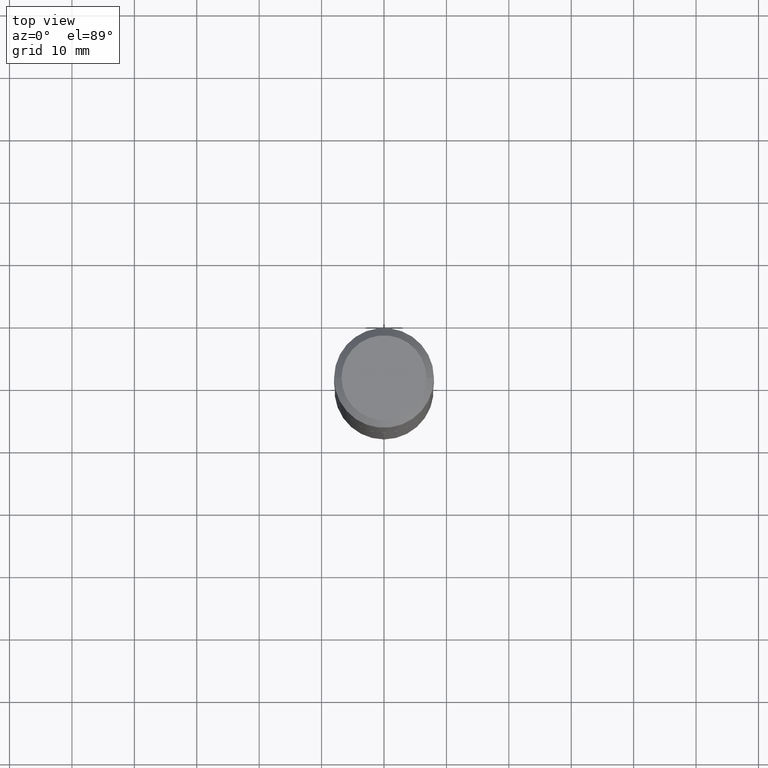
[diagram: clean part render]
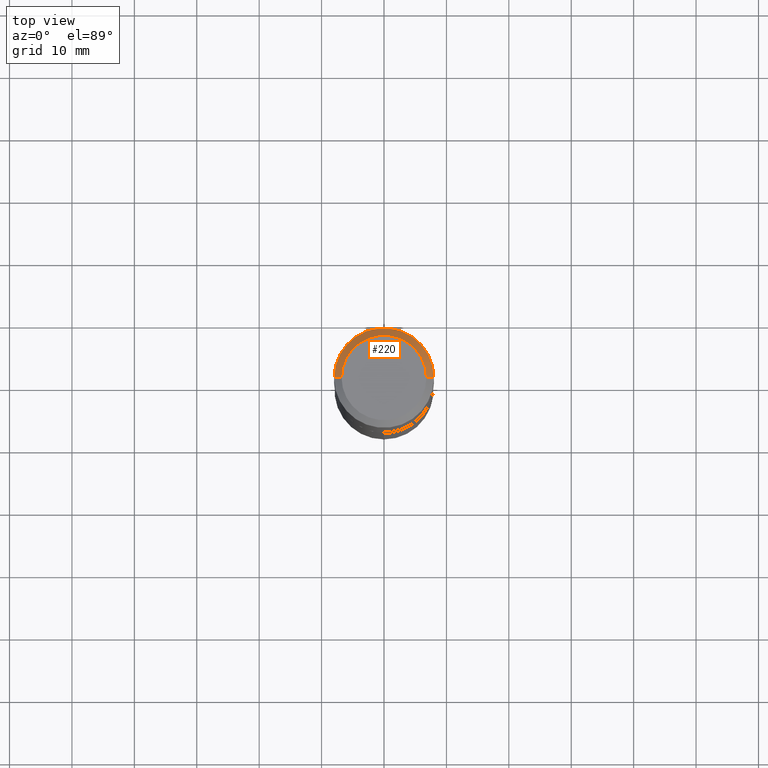
[diagram: same view with one face highlighted and labeled with its STEP entity id]
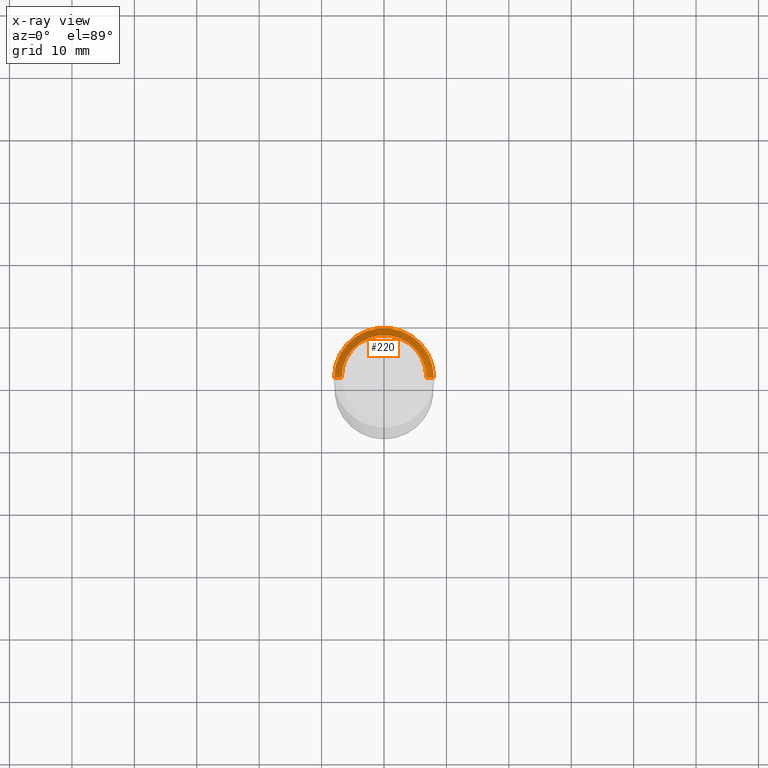
[diagram: x-ray of the same camera — body ghosted, the highlighted face saturated]
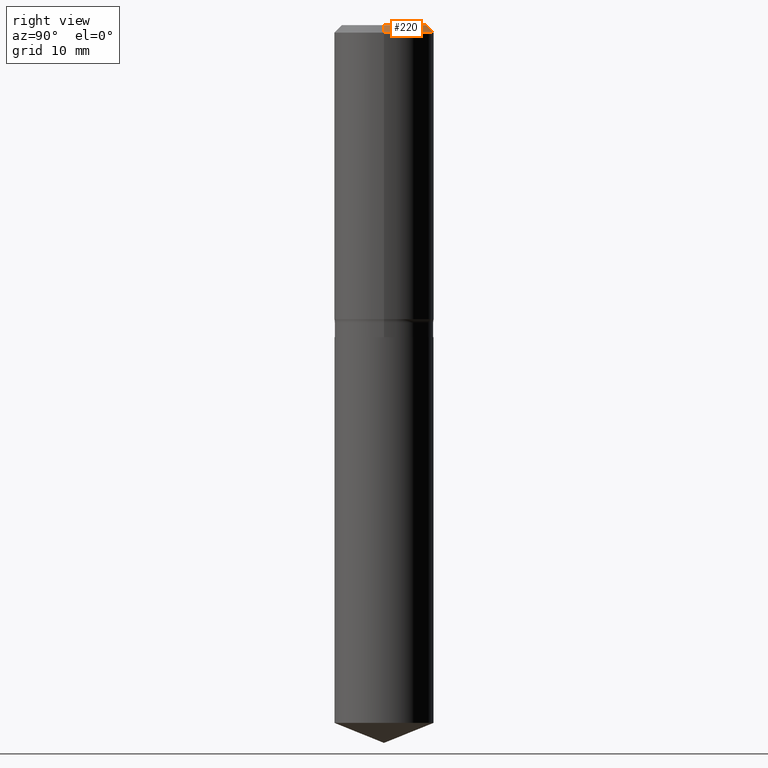
[diagram: same view with one face highlighted and labeled with its STEP entity id]
A machine part, top view. The second image highlights one B-rep face of the part: STEP entity #220.
The next image is the same camera in x-ray: the body ghosted, the highlighted face saturated — about 0% of this face is hidden behind the body in this view.
A second angle (right view) of the same face is appended — the face is thin or edge-on in the first view.
In plain terms, the highlighted conical surface has half-angle 45 deg.
Its self-contained STEP definition (entity closure, byte-faithful):
#10 = ORIENTED_EDGE ( 'NONE', *, *, #335, .T. ) ;
#33 = DIRECTION ( 'NONE',  ( -0.7071067811865453523, 2.468850131082234184E-15, -0.7071067811865496822 ) ) ;
#51 = VERTEX_POINT ( 'NONE', #479 ) ;
#71 = CARTESIAN_POINT ( 'NONE',  ( -0.3149500000000000077, 2.034337788186991592E-15, -0.04724250000000029120 ) ) ;
#80 = VECTOR ( 'NONE', #135, 39.37007874015748143 ) ;
#82 = EDGE_CURVE ( 'NONE', #51, #246, #487, .T. ) ;
#99 = DIRECTION ( 'NONE',  ( 1.000000000000000000, -6.982962677686267499E-15, 4.876236838442819371E-29 ) ) ;
#119 = VERTEX_POINT ( 'NONE', #120 ) ;
#120 = CARTESIAN_POINT ( 'NONE',  ( 0.3149500000000000077, -2.364230402487588149E-15, -0.04724250000000029120 ) ) ;
#131 = CARTESIAN_POINT ( 'NONE',  ( -1.001697619218022568E-46, 1.430158722866391086E-32, 4.096137381448112218E-18 ) ) ;
#135 = DIRECTION ( 'NONE',  ( 0.7071067811865453523, -7.319954787623248157E-15, -0.7071067811865496822 ) ) ;
#161 = DIRECTION ( 'NONE',  ( 2.445468806185136597E-29, -3.491481338843145583E-15, -1.000000000000000000 ) ) ;
#169 = DIRECTION ( 'NONE',  ( -1.000000000000000000, 6.982962677686266711E-15, 0.000000000000000000 ) ) ;
#177 = AXIS2_PLACEMENT_3D ( 'NONE', #131, #409, #99 ) ;
#182 = CARTESIAN_POINT ( 'NONE',  ( 1.155300600762020273E-30, -1.649463071502983032E-16, -0.04724250000000029120 ) ) ;
#200 = CONICAL_SURFACE ( 'NONE', #332, 0.3149500000000000077, 0.7853981633974452814 ) ;
#211 = AXIS2_PLACEMENT_3D ( 'NONE', #182, #480, #413 ) ;
#220 = ADVANCED_FACE ( 'NONE', ( #363 ), #200, .T. ) ;
#246 = VERTEX_POINT ( 'NONE', #425 ) ;
#258 = ORIENTED_EDGE ( 'NONE', *, *, #415, .F. ) ;
#296 = CIRCLE ( 'NONE', #211, 0.3149500000000000077 ) ;
#315 = EDGE_CURVE ( 'NONE', #490, #119, #381, .T. ) ;
#325 = CARTESIAN_POINT ( 'NONE',  ( 0.2677074999999999871, -2.081133459643432233E-15, 4.096137381461924987E-18 ) ) ;
#331 = CARTESIAN_POINT ( 'NONE',  ( 0.3149500000000000077, -2.325660151548442036E-15, -0.04724250000000029120 ) ) ;
#332 = AXIS2_PLACEMENT_3D ( 'NONE', #399, #161, #169 ) ;
#335 = EDGE_CURVE ( 'NONE', #119, #246, #296, .T. ) ;
#338 = ORIENTED_EDGE ( 'NONE', *, *, #315, .T. ) ;
#341 = VECTOR ( 'NONE', #33, 39.37007874015748143 ) ;
#363 = FACE_OUTER_BOUND ( 'NONE', #431, .T. ) ;
#373 = ORIENTED_EDGE ( 'NONE', *, *, #82, .F. ) ;
#381 = LINE ( 'NONE', #331, #80 ) ;
#399 = CARTESIAN_POINT ( 'NONE',  ( 1.155300600762020273E-30, -1.649463071502983032E-16, -0.04724250000000029120 ) ) ;
#409 = DIRECTION ( 'NONE',  ( -2.445468806185136597E-29, 3.491481338843145583E-15, 1.000000000000000000 ) ) ;
#413 = DIRECTION ( 'NONE',  ( 1.000000000000000000, -6.982962677686266711E-15, 0.000000000000000000 ) ) ;
#415 = EDGE_CURVE ( 'NONE', #490, #51, #467, .T. ) ;
#425 = CARTESIAN_POINT ( 'NONE',  ( -0.3149500000000000077, -1.083498783479817878E-15, -0.04724250000000029120 ) ) ;
#431 = EDGE_LOOP ( 'NONE', ( #258, #338, #10, #373 ) ) ;
#467 = CIRCLE ( 'NONE', #177, 0.2677074999999999871 ) ;
#479 = CARTESIAN_POINT ( 'NONE',  ( -0.2677074999999999871, 1.951864634611843833E-15, 4.096137381434750116E-18 ) ) ;
#480 = DIRECTION ( 'NONE',  ( -2.445468806185136597E-29, 3.491481338843145583E-15, 1.000000000000000000 ) ) ;
#487 = LINE ( 'NONE', #71, #341 ) ;
#490 = VERTEX_POINT ( 'NONE', #325 ) ;